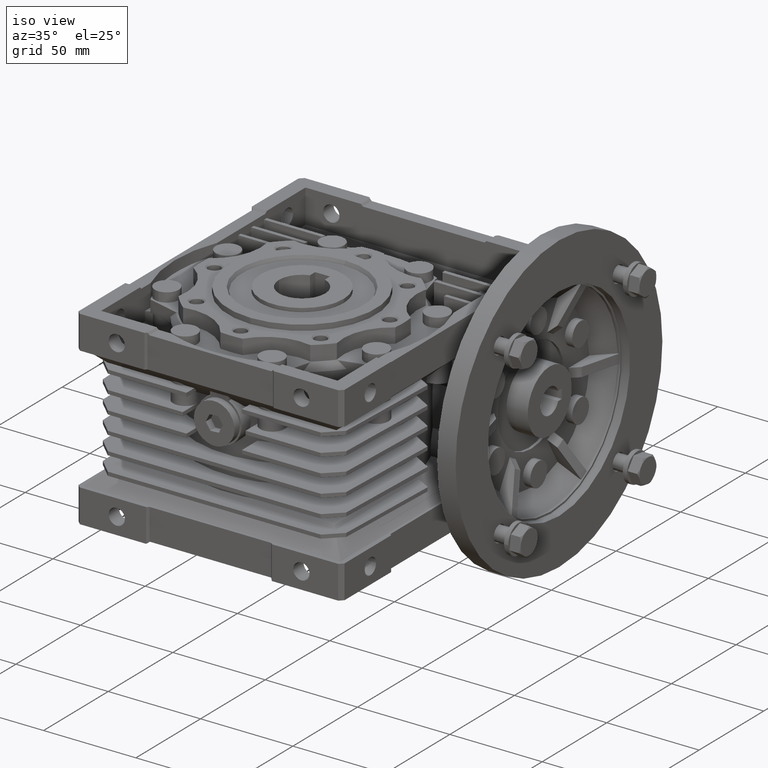
[diagram: clean part render]
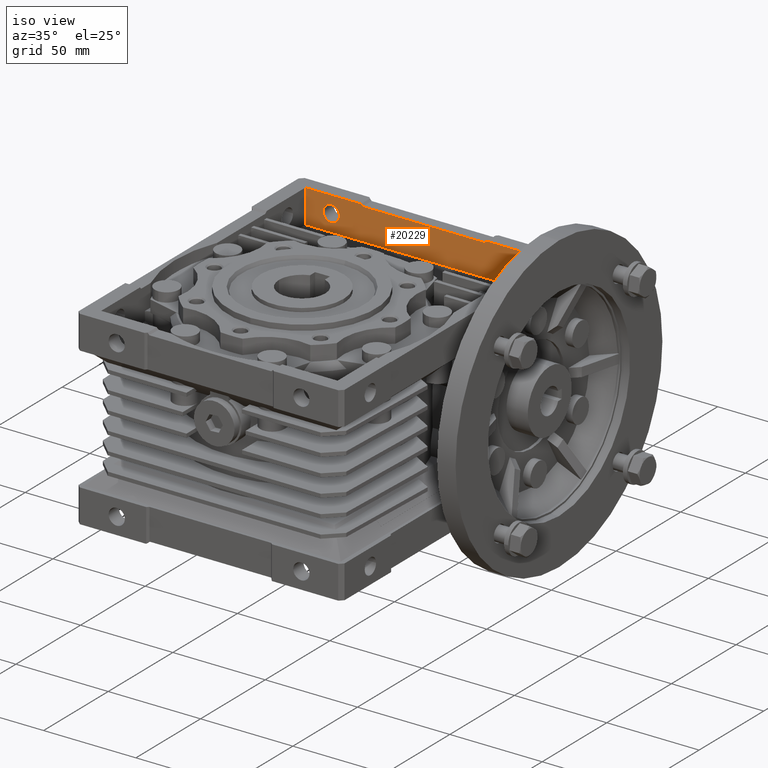
[diagram: same view with one face highlighted and labeled with its STEP entity id]
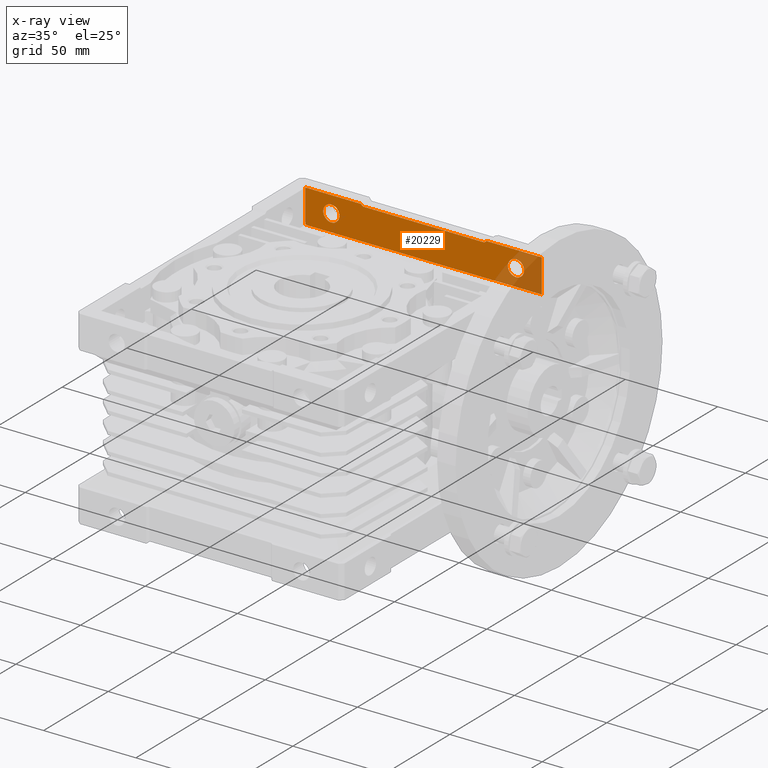
[diagram: x-ray of the same camera — body ghosted, the highlighted face saturated]
A machine part, iso view. The second image highlights one B-rep face of the part: STEP entity #20229.
The next image is the same camera in x-ray: the body ghosted, the highlighted face saturated — about 14% of this face is hidden behind the body in this view.
In plain terms, the highlighted planar face has unit normal (0, -1, 0).
Its self-contained STEP definition (entity closure, byte-faithful):
#2408 = DIRECTION ( 'NONE',  ( 1.000000000000000000, 0.000000000000000000, 0.000000000000000000 ) ) ;
#2778 = LINE ( 'NONE', #10081, #30250 ) ;
#2794 = VECTOR ( 'NONE', #2408, 1000.000000000000000 ) ;
#3251 = DIRECTION ( 'NONE',  ( 0.7071067811865474617, 0.000000000000000000, 0.7071067811865474617 ) ) ;
#3325 = ORIENTED_EDGE ( 'NONE', *, *, #5711, .F. ) ;
#3506 = DIRECTION ( 'NONE',  ( 0.000000000000000000, -1.000000000000000000, 0.000000000000000000 ) ) ;
#4496 = VECTOR ( 'NONE', #18765, 1000.000000000000114 ) ;
#4743 = EDGE_LOOP ( 'NONE', ( #7974, #16792 ) ) ;
#4868 = EDGE_CURVE ( 'NONE', #30376, #17908, #17759, .T. ) ;
#5351 = EDGE_CURVE ( 'NONE', #32072, #30376, #40357, .T. ) ;
#5711 = EDGE_CURVE ( 'NONE', #9985, #17908, #2778, .T. ) ;
#5845 = DIRECTION ( 'NONE',  ( -1.000000000000000000, 0.000000000000000000, 0.000000000000000000 ) ) ;
#6482 = ORIENTED_EDGE ( 'NONE', *, *, #25673, .T. ) ;
#6878 = VECTOR ( 'NONE', #28887, 1000.000000000000000 ) ;
#6960 = CARTESIAN_POINT ( 'NONE',  ( 64.00000000000000000, 94.00000000000000000, -33.30000000000000426 ) ) ;
#7974 = ORIENTED_EDGE ( 'NONE', *, *, #25870, .T. ) ;
#9573 = CARTESIAN_POINT ( 'NONE',  ( 50.00000000000000000, 94.00000000000000000, 42.50000000000000000 ) ) ;
#9727 = CARTESIAN_POINT ( 'NONE',  ( -64.00000000000000000, 94.00000000000000000, 50.50000000000000000 ) ) ;
#9985 = VERTEX_POINT ( 'NONE', #35346 ) ;
#10071 = EDGE_CURVE ( 'NONE', #18301, #17135, #19116, .T. ) ;
#10081 = CARTESIAN_POINT ( 'NONE',  ( 34.00000000000000000, 94.00000000000000000, 51.50000000000000000 ) ) ;
#10190 = LINE ( 'NONE', #10426, #2794 ) ;
#10426 = CARTESIAN_POINT ( 'NONE',  ( -64.00000000000000000, 94.00000000000000000, 33.30000000000000426 ) ) ;
#10453 = ORIENTED_EDGE ( 'NONE', *, *, #25149, .T. ) ;
#10628 = CIRCLE ( 'NONE', #23897, 4.389999999999997904 ) ;
#10673 = DIRECTION ( 'NONE',  ( -1.000000000000000000, 0.000000000000000000, 0.000000000000000000 ) ) ;
#10706 = ORIENTED_EDGE ( 'NONE', *, *, #5351, .T. ) ;
#10738 = EDGE_CURVE ( 'NONE', #36691, #25893, #10628, .T. ) ;
#10934 = DIRECTION ( 'NONE',  ( 0.000000000000000000, 1.000000000000000000, 0.000000000000000000 ) ) ;
#12622 = DIRECTION ( 'NONE',  ( 0.000000000000000000, 0.000000000000000000, 1.000000000000000000 ) ) ;
#13193 = CIRCLE ( 'NONE', #32706, 4.389999999999997904 ) ;
#13711 = VECTOR ( 'NONE', #10673, 1000.000000000000000 ) ;
#16054 = LINE ( 'NONE', #35603, #38542 ) ;
#16792 = ORIENTED_EDGE ( 'NONE', *, *, #29799, .T. ) ;
#16909 = CARTESIAN_POINT ( 'NONE',  ( -64.00000000000000000, 94.00000000000000000, 51.50000000000000000 ) ) ;
#17135 = VERTEX_POINT ( 'NONE', #16909 ) ;
#17151 = CARTESIAN_POINT ( 'NONE',  ( -50.00000000000000000, 94.00000000000000000, 38.11000000000000654 ) ) ;
#17759 = LINE ( 'NONE', #40183, #42637 ) ;
#17908 = VERTEX_POINT ( 'NONE', #45135 ) ;
#18219 = CARTESIAN_POINT ( 'NONE',  ( -50.00000000000000000, 94.00000000000000000, 42.50000000000000000 ) ) ;
#18237 = CARTESIAN_POINT ( 'NONE',  ( 0.000000000000000000, 94.00000000000000000, 51.50000000000000000 ) ) ;
#18301 = VERTEX_POINT ( 'NONE', #41196 ) ;
#18452 = DIRECTION ( 'NONE',  ( -1.000000000000000000, 0.000000000000000000, 0.000000000000000000 ) ) ;
#18726 = DIRECTION ( 'NONE',  ( 0.000000000000000000, 0.000000000000000000, -1.000000000000000000 ) ) ;
#18765 = DIRECTION ( 'NONE',  ( -0.7071067811865474617, 0.000000000000000000, 0.7071067811865474617 ) ) ;
#18775 = EDGE_CURVE ( 'NONE', #45716, #17135, #16054, .T. ) ;
#19116 = LINE ( 'NONE', #18237, #13711 ) ;
#20229 = ADVANCED_FACE ( 'NONE', ( #40112, #33287, #28879 ), #47833, .T. ) ;
#20794 = CIRCLE ( 'NONE', #32469, 4.389999999999997904 ) ;
#21208 = ORIENTED_EDGE ( 'NONE', *, *, #10738, .T. ) ;
#22157 = VERTEX_POINT ( 'NONE', #45390 ) ;
#23889 = CARTESIAN_POINT ( 'NONE',  ( -50.00000000000000000, 94.00000000000000000, 46.89000000000000057 ) ) ;
#23897 = AXIS2_PLACEMENT_3D ( 'NONE', #44326, #10934, #18726 ) ;
#24847 = DIRECTION ( 'NONE',  ( 0.000000000000000000, 0.000000000000000000, -1.000000000000000000 ) ) ;
#25149 = EDGE_CURVE ( 'NONE', #45716, #32072, #10190, .T. ) ;
#25476 = CARTESIAN_POINT ( 'NONE',  ( -64.00000000000000000, 94.00000000000000000, 33.30000000000000426 ) ) ;
#25673 = EDGE_CURVE ( 'NONE', #25893, #36691, #40931, .T. ) ;
#25745 = ORIENTED_EDGE ( 'NONE', *, *, #4868, .T. ) ;
#25870 = EDGE_CURVE ( 'NONE', #27323, #45506, #20794, .T. ) ;
#25893 = VERTEX_POINT ( 'NONE', #17151 ) ;
#26185 = EDGE_LOOP ( 'NONE', ( #6482, #21208 ) ) ;
#26722 = CARTESIAN_POINT ( 'NONE',  ( -64.00000000000000000, 94.00000000000000000, 33.30000000000000426 ) ) ;
#27274 = AXIS2_PLACEMENT_3D ( 'NONE', #25476, #3506, #43743 ) ;
#27323 = VERTEX_POINT ( 'NONE', #36411 ) ;
#27617 = DIRECTION ( 'NONE',  ( 0.000000000000000000, 1.000000000000000000, 0.000000000000000000 ) ) ;
#28759 = LINE ( 'NONE', #9727, #37856 ) ;
#28879 = FACE_BOUND ( 'NONE', #4743, .T. ) ;
#28887 = DIRECTION ( 'NONE',  ( 0.000000000000000000, 0.000000000000000000, 1.000000000000000000 ) ) ;
#29799 = EDGE_CURVE ( 'NONE', #45506, #27323, #13193, .T. ) ;
#30154 = ORIENTED_EDGE ( 'NONE', *, *, #10071, .T. ) ;
#30250 = VECTOR ( 'NONE', #3251, 1000.000000000000114 ) ;
#30376 = VERTEX_POINT ( 'NONE', #36609 ) ;
#31287 = DIRECTION ( 'NONE',  ( 0.000000000000000000, 1.000000000000000000, 0.000000000000000000 ) ) ;
#32072 = VERTEX_POINT ( 'NONE', #35510 ) ;
#32469 = AXIS2_PLACEMENT_3D ( 'NONE', #9573, #27617, #35936 ) ;
#32706 = AXIS2_PLACEMENT_3D ( 'NONE', #35700, #31287, #38605 ) ;
#33217 = CARTESIAN_POINT ( 'NONE',  ( 50.00000000000000000, 94.00000000000000000, 46.89000000000000057 ) ) ;
#33287 = FACE_BOUND ( 'NONE', #26185, .T. ) ;
#33896 = CARTESIAN_POINT ( 'NONE',  ( -33.00000000000000000, 94.00000000000000000, 50.50000000000000000 ) ) ;
#34010 = EDGE_LOOP ( 'NONE', ( #10453, #10706, #25745, #3325, #43252, #35121, #30154, #45618 ) ) ;
#35121 = ORIENTED_EDGE ( 'NONE', *, *, #40662, .T. ) ;
#35346 = CARTESIAN_POINT ( 'NONE',  ( 33.00000000000000000, 94.00000000000000000, 50.50000000000000000 ) ) ;
#35510 = CARTESIAN_POINT ( 'NONE',  ( 64.00000000000000000, 94.00000000000000000, 33.30000000000000426 ) ) ;
#35603 = CARTESIAN_POINT ( 'NONE',  ( -64.00000000000000000, 94.00000000000000000, 33.30000000000000426 ) ) ;
#35700 = CARTESIAN_POINT ( 'NONE',  ( 50.00000000000000000, 94.00000000000000000, 42.50000000000000000 ) ) ;
#35936 = DIRECTION ( 'NONE',  ( 0.000000000000000000, 0.000000000000000000, -1.000000000000000000 ) ) ;
#36411 = CARTESIAN_POINT ( 'NONE',  ( 50.00000000000000000, 94.00000000000000000, 38.11000000000000654 ) ) ;
#36609 = CARTESIAN_POINT ( 'NONE',  ( 64.00000000000000000, 94.00000000000000000, 51.50000000000000000 ) ) ;
#36691 = VERTEX_POINT ( 'NONE', #23889 ) ;
#37856 = VECTOR ( 'NONE', #5845, 1000.000000000000000 ) ;
#38542 = VECTOR ( 'NONE', #12622, 1000.000000000000000 ) ;
#38605 = DIRECTION ( 'NONE',  ( 0.000000000000000000, 0.000000000000000000, -1.000000000000000000 ) ) ;
#38633 = AXIS2_PLACEMENT_3D ( 'NONE', #18219, #47449, #24847 ) ;
#40112 = FACE_OUTER_BOUND ( 'NONE', #34010, .T. ) ;
#40183 = CARTESIAN_POINT ( 'NONE',  ( -64.00000000000000000, 94.00000000000000000, 51.50000000000000000 ) ) ;
#40357 = LINE ( 'NONE', #6960, #6878 ) ;
#40662 = EDGE_CURVE ( 'NONE', #22157, #18301, #41920, .T. ) ;
#40931 = CIRCLE ( 'NONE', #38633, 4.389999999999997904 ) ;
#41196 = CARTESIAN_POINT ( 'NONE',  ( -34.00000000000000000, 94.00000000000000000, 51.50000000000000000 ) ) ;
#41920 = LINE ( 'NONE', #33896, #4496 ) ;
#42637 = VECTOR ( 'NONE', #18452, 1000.000000000000000 ) ;
#43252 = ORIENTED_EDGE ( 'NONE', *, *, #46998, .T. ) ;
#43743 = DIRECTION ( 'NONE',  ( 0.000000000000000000, 0.000000000000000000, -1.000000000000000000 ) ) ;
#44326 = CARTESIAN_POINT ( 'NONE',  ( -50.00000000000000000, 94.00000000000000000, 42.50000000000000000 ) ) ;
#45135 = CARTESIAN_POINT ( 'NONE',  ( 34.00000000000000000, 94.00000000000000000, 51.50000000000000000 ) ) ;
#45390 = CARTESIAN_POINT ( 'NONE',  ( -33.00000000000000000, 94.00000000000000000, 50.50000000000000000 ) ) ;
#45506 = VERTEX_POINT ( 'NONE', #33217 ) ;
#45618 = ORIENTED_EDGE ( 'NONE', *, *, #18775, .F. ) ;
#45716 = VERTEX_POINT ( 'NONE', #26722 ) ;
#46998 = EDGE_CURVE ( 'NONE', #9985, #22157, #28759, .T. ) ;
#47449 = DIRECTION ( 'NONE',  ( 0.000000000000000000, 1.000000000000000000, 0.000000000000000000 ) ) ;
#47833 = PLANE ( 'NONE',  #27274 ) ;